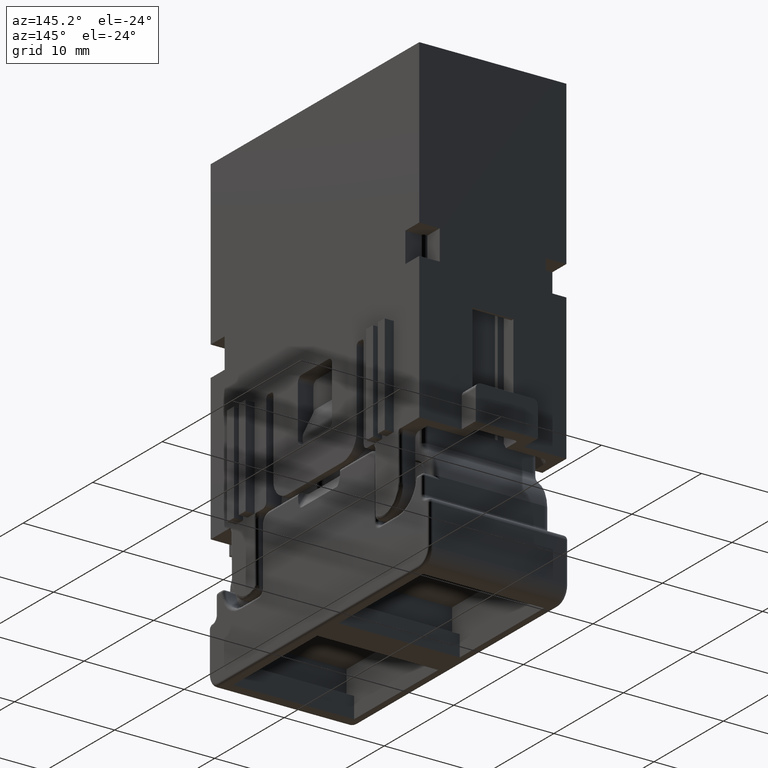
[diagram: clean part render]
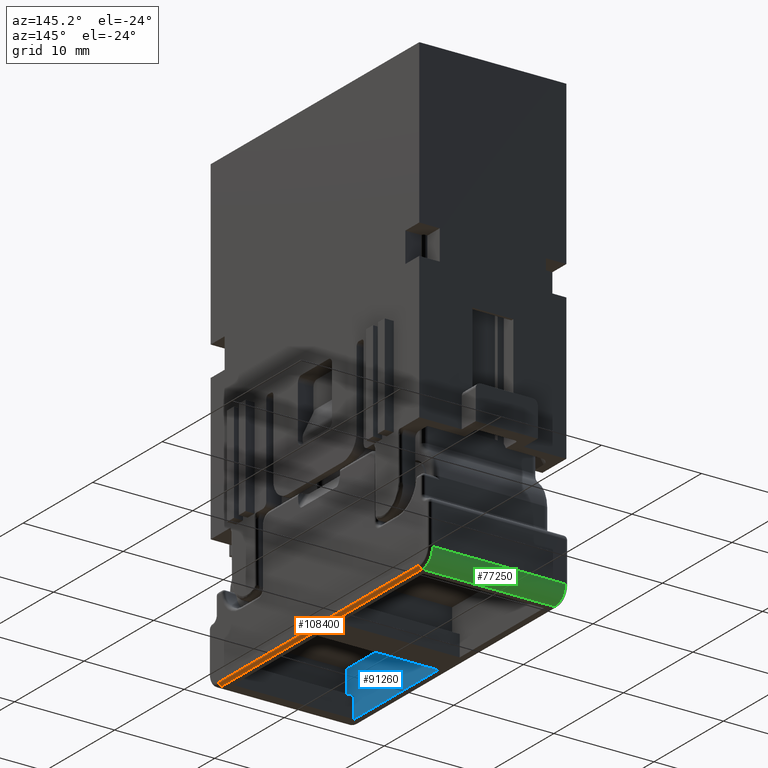
[diagram: same view with three faces highlighted in distinct colors, each labeled with its STEP entity id]
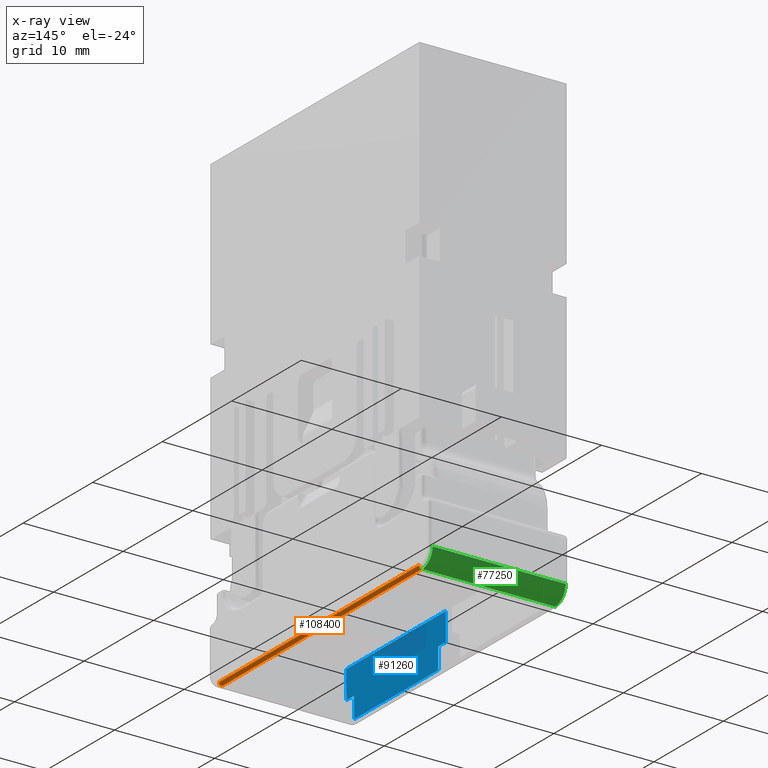
[diagram: x-ray of the same camera — body ghosted, the three highlighted faces saturated]
A machine part, auxiliary view with three faces highlighted in distinct colors.
The next image is the same camera in x-ray (body ghosted, the three faces saturated) — at least one of them is partly hidden behind the body in this view.
Their STEP definitions:

[orange] entity #108400 — the highlighted cylindrical surface (edge-blend (fillet) strip) has radius 0.3 mm, axis along (0, 1, 0).
#77040=CARTESIAN_POINT('',(75.175,52.2999999999879,-45.2499999999999));
#77050=VERTEX_POINT('',#77040);
#77850=CARTESIAN_POINT('',(0.,52.2999999999879,-45.2499999999999));
#77860=DIRECTION('',(1.,0.,0.));
#77870=VECTOR('',#77860,1.);
#77880=LINE('',#77850,#77870);
#77890=CARTESIAN_POINT('',(46.375,52.2999999999879,-45.2499999999999));
#77900=VERTEX_POINT('',#77890);
#77910=EDGE_CURVE('',#77900,#77050,#77880,.T.);
#108080=CARTESIAN_POINT('',(0.,52.2999999999879,-44.9499999999999));
#108090=DIRECTION('',(1.,0.,0.));
#108100=DIRECTION('',(0.,-1.,0.));
#108110=AXIS2_PLACEMENT_3D('',#108080,#108090,#108100);
#108120=CYLINDRICAL_SURFACE('',#108110,0.3);
#108130=CARTESIAN_POINT('',(75.175,52.2999999999879,-44.9499999999999));
#108140=DIRECTION('',(-1.,0.,0.));
#108150=DIRECTION('',(0.,1.,0.));
#108160=AXIS2_PLACEMENT_3D('',#108130,#108140,#108150);
#108170=CIRCLE('',#108160,0.3);
#108180=CARTESIAN_POINT('',(75.175,51.9999999999879,-44.9499999999999));
#108190=VERTEX_POINT('',#108180);
#108200=EDGE_CURVE('',#77050,#108190,#108170,.T.);
#108210=ORIENTED_EDGE('',*,*,#108200,.T.);
#108220=ORIENTED_EDGE('',*,*,#77910,.T.);
#108230=CARTESIAN_POINT('',(46.375,52.2999999999879,-44.9499999999999));
#108240=DIRECTION('',(-1.,0.,0.));
#108250=DIRECTION('',(0.,1.,0.));
#108260=AXIS2_PLACEMENT_3D('',#108230,#108240,#108250);
#108270=CIRCLE('',#108260,0.3);
#108280=CARTESIAN_POINT('',(46.375,51.9999999999879,-44.9499999999999));
#108290=VERTEX_POINT('',#108280);
#108300=EDGE_CURVE('',#77900,#108290,#108270,.T.);
#108310=ORIENTED_EDGE('',*,*,#108300,.F.);
#108320=CARTESIAN_POINT('',(0.,51.9999999999879,-44.9499999999999));
#108330=DIRECTION('',(1.,0.,0.));
#108340=VECTOR('',#108330,1.);
#108350=LINE('',#108320,#108340);
#108360=EDGE_CURVE('',#108290,#108190,#108350,.T.);
#108370=ORIENTED_EDGE('',*,*,#108360,.F.);
#108380=EDGE_LOOP('',(#108370,#108310,#108220,#108210));
#108390=FACE_OUTER_BOUND('',#108380,.T.);
#108400=ADVANCED_FACE('',(#108390),#108120,.T.);

[blue] entity #91260 — the highlighted planar face has unit normal (1, -0, -0).
#32680=CARTESIAN_POINT('',(60.325,64.9999999217726,-40.3499999999999));
#32690=VERTEX_POINT('',#32680);
#32720=CARTESIAN_POINT('',(0.,64.9999999217726,-40.3499999999999));
#32730=DIRECTION('',(1.,0.,0.));
#32740=VECTOR('',#32730,1.);
#32750=LINE('',#32720,#32740);
#32760=CARTESIAN_POINT('',(46.025,64.9999999217726,-40.3499999999999));
#32770=VERTEX_POINT('',#32760);
#32780=EDGE_CURVE('',#32770,#32690,#32750,.T.);
#32940=CARTESIAN_POINT('',(59.225,64.9999999217726,0.0500000000000256));
#32950=DIRECTION('',(0.,0.,-1.));
#32960=VECTOR('',#32950,1.);
#32970=LINE('',#32940,#32960);
#32980=CARTESIAN_POINT('',(59.225,64.9999999217726,-43.1499999999999));
#32990=VERTEX_POINT('',#32980);
#33000=CARTESIAN_POINT('',(59.225,64.9999999217726,-45.2499999999999));
#33010=VERTEX_POINT('',#33000);
#33020=EDGE_CURVE('',#32990,#33010,#32970,.T.);
#66750=CARTESIAN_POINT('',(46.025,64.9999999217726,-43.1499999999999));
#66760=VERTEX_POINT('',#66750);
#66790=CARTESIAN_POINT('',(0.,64.9999999217726,-43.1499999999999));
#66800=DIRECTION('',(1.,0.,0.));
#66810=VECTOR('',#66800,1.);
#66820=LINE('',#66790,#66810);
#66830=CARTESIAN_POINT('',(47.125,64.9999999217726,-43.1499999999999));
#66840=VERTEX_POINT('',#66830);
#66850=EDGE_CURVE('',#66760,#66840,#66820,.T.);
#77260=CARTESIAN_POINT('',(60.7750000000202,64.9999999217726,
-36.5249999999997));
#77270=DIRECTION('',(-0.,-1.,-0.));
#77280=DIRECTION('',(-1.,0.,0.));
#77290=AXIS2_PLACEMENT_3D('',#77260,#77270,#77280);
#77300=PLANE('',#77290);
#78090=CARTESIAN_POINT('',(47.125,64.9999999217726,-45.2499999999999));
#78100=VERTEX_POINT('',#78090);
#78130=CARTESIAN_POINT('',(0.,64.9999999217726,-45.2499999999999));
#78140=DIRECTION('',(1.,0.,0.));
#78150=VECTOR('',#78140,1.);
#78160=LINE('',#78130,#78150);
#78170=EDGE_CURVE('',#78100,#33010,#78160,.T.);
#80100=CARTESIAN_POINT('',(47.125,64.9999999217726,-45.2499999999999));
#80110=DIRECTION('',(0.,0.,1.));
#80120=VECTOR('',#80110,1.);
#80130=LINE('',#80100,#80120);
#80140=EDGE_CURVE('',#78100,#66840,#80130,.T.);
#90990=CARTESIAN_POINT('',(60.325,64.9999999217726,-40.3499999999999));
#91000=DIRECTION('',(0.,0.,-1.));
#91010=VECTOR('',#91000,1.);
#91020=LINE('',#90990,#91010);
#91030=CARTESIAN_POINT('',(60.325,64.9999999217726,-43.1499999999999));
#91040=VERTEX_POINT('',#91030);
#91050=EDGE_CURVE('',#32690,#91040,#91020,.T.);
#91060=ORIENTED_EDGE('',*,*,#91050,.F.);
#91070=CARTESIAN_POINT('',(2.1316282072803E-14,64.9999999217726,
-43.1499999999999));
#91080=DIRECTION('',(-1.,0.,0.));
#91090=VECTOR('',#91080,1.);
#91100=LINE('',#91070,#91090);
#91110=EDGE_CURVE('',#91040,#32990,#91100,.T.);
#91120=ORIENTED_EDGE('',*,*,#91110,.F.);
#91130=ORIENTED_EDGE('',*,*,#33020,.F.);
#91140=ORIENTED_EDGE('',*,*,#78170,.T.);
#91150=ORIENTED_EDGE('',*,*,#80140,.F.);
#91160=ORIENTED_EDGE('',*,*,#66850,.T.);
#91170=CARTESIAN_POINT('',(46.025,64.9999999217726,0.));
#91180=DIRECTION('',(0.,-0.,-1.));
#91190=VECTOR('',#91180,1.);
#91200=LINE('',#91170,#91190);
#91210=EDGE_CURVE('',#32770,#66760,#91200,.T.);
#91220=ORIENTED_EDGE('',*,*,#91210,.T.);
#91230=ORIENTED_EDGE('',*,*,#32780,.F.);
#91240=EDGE_LOOP('',(#91230,#91220,#91160,#91150,#91140,#91130,#91120,
#91060));
#91250=FACE_OUTER_BOUND('',#91240,.T.);
#91260=ADVANCED_FACE('',(#91250),#77300,.T.);

[green] entity #77250 — the highlighted cylindrical surface (edge-blend (fillet) strip) has radius 1.5 mm, axis along (-1, 0, 0).
#60250=CARTESIAN_POINT('',(75.175,65.599999999984,-45.2499999999999));
#60260=VERTEX_POINT('',#60250);
#68910=CARTESIAN_POINT('',(75.175,65.599999999984,-43.7499999999999));
#68920=DIRECTION('',(0.,1.,0.));
#68930=DIRECTION('',(1.,0.,0.));
#68940=AXIS2_PLACEMENT_3D('',#68910,#68920,#68930);
#68950=CIRCLE('',#68940,1.49999999999999);
#68960=CARTESIAN_POINT('',(76.675,65.599999999984,-43.7499999999999));
#68970=VERTEX_POINT('',#68960);
#68980=EDGE_CURVE('',#68970,#60260,#68950,.T.);
#76940=CARTESIAN_POINT('',(75.175,0.,-43.7499999999999));
#76950=DIRECTION('',(0.,1.,0.));
#76960=DIRECTION('',(1.,0.,0.));
#76970=AXIS2_PLACEMENT_3D('',#76940,#76950,#76960);
#76980=CYLINDRICAL_SURFACE('',#76970,1.49999999999999);
#76990=ORIENTED_EDGE('',*,*,#68980,.F.);
#77000=CARTESIAN_POINT('',(75.175,0.,-45.2499999999999));
#77010=DIRECTION('',(0.,1.,0.));
#77020=VECTOR('',#77010,1.);
#77030=LINE('',#77000,#77020);
#77040=CARTESIAN_POINT('',(75.175,52.2999999999879,-45.2499999999999));
#77050=VERTEX_POINT('',#77040);
#77060=EDGE_CURVE('',#77050,#60260,#77030,.T.);
#77070=ORIENTED_EDGE('',*,*,#77060,.T.);
#77080=CARTESIAN_POINT('',(75.175,52.2999999999879,-43.7499999999999));
#77090=DIRECTION('',(0.,1.,0.));
#77100=DIRECTION('',(1.,0.,0.));
#77110=AXIS2_PLACEMENT_3D('',#77080,#77090,#77100);
#77120=CIRCLE('',#77110,1.49999999999999);
#77130=CARTESIAN_POINT('',(76.675,52.2999999999879,-43.7499999999999));
#77140=VERTEX_POINT('',#77130);
#77150=EDGE_CURVE('',#77140,#77050,#77120,.T.);
#77160=ORIENTED_EDGE('',*,*,#77150,.T.);
#77170=CARTESIAN_POINT('',(76.675,0.,-43.7499999999999));
#77180=DIRECTION('',(0.,1.,0.));
#77190=VECTOR('',#77180,1.);
#77200=LINE('',#77170,#77190);
#77210=EDGE_CURVE('',#77140,#68970,#77200,.T.);
#77220=ORIENTED_EDGE('',*,*,#77210,.F.);
#77230=EDGE_LOOP('',(#77220,#77160,#77070,#76990));
#77240=FACE_OUTER_BOUND('',#77230,.T.);
#77250=ADVANCED_FACE('',(#77240),#76980,.T.);